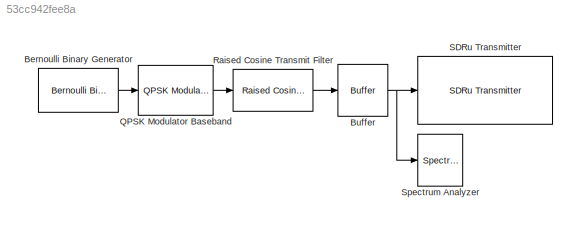
MODEL slx_53cc942fee8a
KIND model
CONFIG AbsTol = auto
CONFIG EnableMultiTasking = off
CONFIG FixedStep = auto
CONFIG MaxStep = auto
CONFIG MinStep = auto
CONFIG RelTol = 1e-3
CONFIG SampleTimeConstraint = Unconstrained
CONFIG Solver = VariableStepAuto
CONFIG SolverName = VariableStepAuto
CONFIG StartTime = 0.0
CONFIG StopTime = inf
BLOCK [Reference] Bernoulli Binary Generator  REF=commrandsrc3/Bernoulli Binary
Generator
  Ports = [0, 1]
  SourceBlock = commrandsrc3/Bernoulli Binary\nGenerator
  SourceProductBaseCode = CM
  SourceProductName = Communications System Toolbox
  SourceType = Bernoulli Binary Generator
BLOCK [Buffer] Buffer
  N = 1000
  OutputFrames = off
BLOCK [Reference] QPSK Modulator Baseband  REF=commdigbbndpm3/QPSK
Modulator
Baseband
  Ports = [1, 1]
  SourceBlock = commdigbbndpm3/QPSK\nModulator\nBaseband
  SourceProductBaseCode = CM
  SourceProductName = Communications System Toolbox
  SourceType = QPSK Modulator Baseband
BLOCK [Reference] Raised Cosine Transmit Filter  REF=commfilt2/Raised Cosine
Transmit Filter
  Ports = [1, 1]
  SourceBlock = commfilt2/Raised Cosine\nTransmit Filter
  SourceProductBaseCode = CM
  SourceProductName = Communications System Toolbox
  SourceType = Raised Cosine Transmit Filter
BLOCK [Reference] SDRu Transmitter  REF=commsdrhw_v2/SDRu Transmitter
  Ports = [1]
  SourceBlock = commsdrhw_v2/SDRu Transmitter
  SourceProductBaseCode = USRP
  SourceProductName = Communications System Toolbox Support Package for USRP(R) Radio
  SourceType = SDRu Transmitter
BLOCK [SpectrumAnalyzer] Spectrum Analyzer
  Ports = [1]
  ScopeSpecificationString = spbscopes.SpectrumAnalyzerBlockCfg('CurrentConfiguration', extmgr.ConfigurationSet(extmgr.Configuration('Core','General UI',true,'FigureColor',[1 1 1]),extmgr.Configuration('Core','Source UI',true),extmgr.Configuration('Sources','WiredSimulink',true),extmgr.Configuration('Visuals','Spectrum',true,'AxesProperties',struct('Color',{[1 1 1],[1 1 1]},'XColor',{[0 0 0],[0 0 0]},'YColor',{[0 0 0],[0 0 0]...<+1673ch>
LINE Bernoulli Binary Generator:1 -> QPSK Modulator Baseband:1
NET Buffer:1 -> SDRu Transmitter:1, Spectrum Analyzer:1
LINE QPSK Modulator Baseband:1 -> Raised Cosine Transmit Filter:1
LINE Raised Cosine Transmit Filter:1 -> Buffer:1
note: NET lines group one-source signal fan-out (src -> all destinations, sorted); 1:1 wires keep LINE
